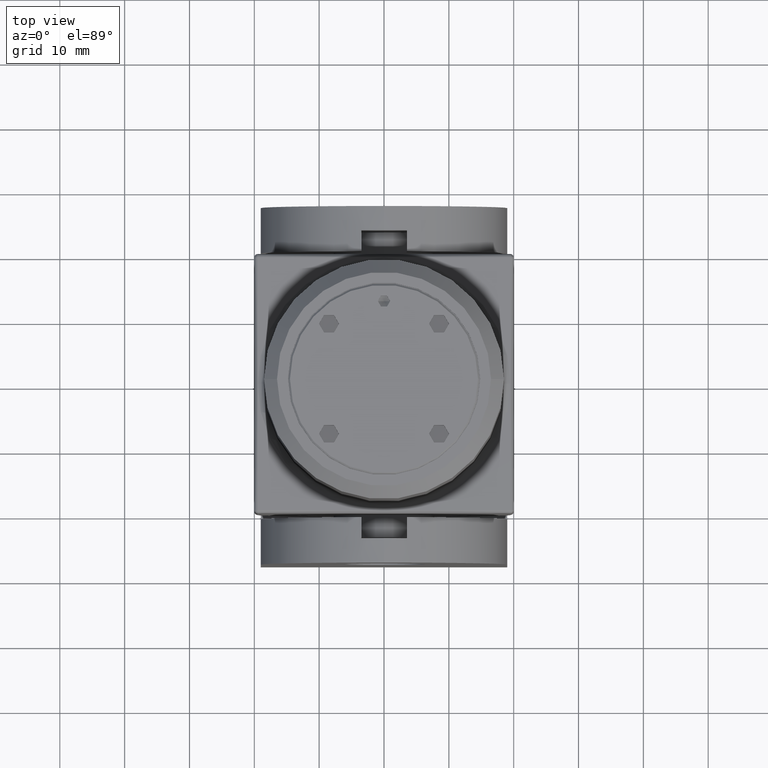
[diagram: clean part render]
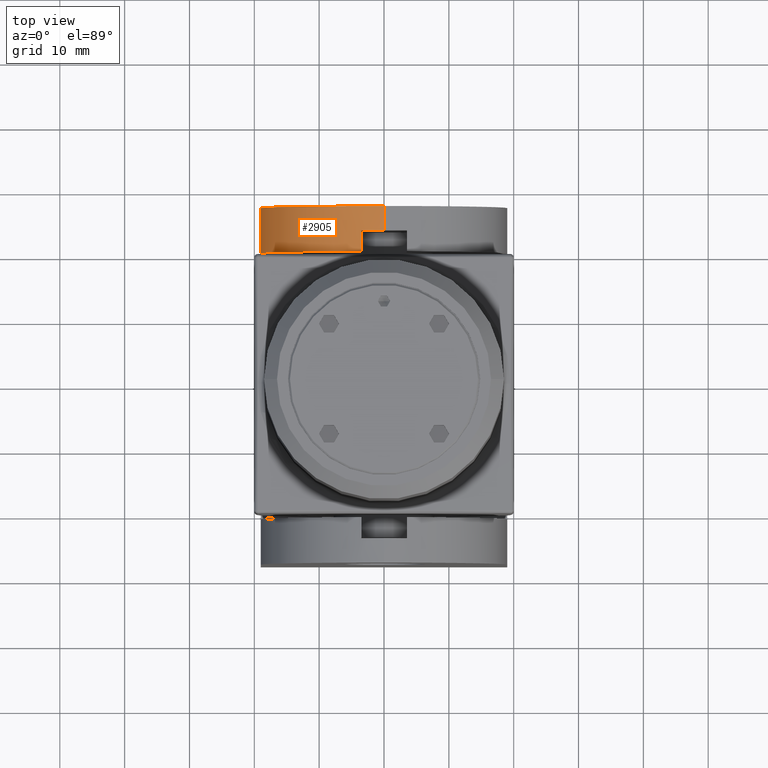
[diagram: same view with one face highlighted and labeled with its STEP entity id]
A machine part, top view. The second image highlights one B-rep face of the part: STEP entity #2905.
In plain terms, the highlighted cylindrical surface (partial cylindrical patch) has radius 19 mm, axis along (0, -1, 0).
Its self-contained STEP definition (entity closure, byte-faithful):
#159 = DIRECTION ( 'NONE',  ( -0.000000000000000000, 1.000000000000000000, -0.000000000000000000 ) ) ;
#530 = CARTESIAN_POINT ( 'NONE',  ( 0.000000000000000000, 23.75000000000000000, 23.99999999999999645 ) ) ;
#1150 = EDGE_LOOP ( 'NONE', ( #16605, #18864, #5892, #1380, #10710, #11882 ) ) ;
#1380 = ORIENTED_EDGE ( 'NONE', *, *, #3779, .F. ) ;
#1410 = DIRECTION ( 'NONE',  ( 0.000000000000000000, 0.000000000000000000, 1.000000000000000000 ) ) ;
#1714 = EDGE_CURVE ( 'NONE', #4955, #9283, #3609, .T. ) ;
#1721 = LINE ( 'NONE', #15248, #15624 ) ;
#1737 = CIRCLE ( 'NONE', #4975, 19.00000000000000000 ) ;
#2346 = DIRECTION ( 'NONE',  ( 0.000000000000000000, 0.000000000000000000, -1.000000000000000000 ) ) ;
#2749 = CARTESIAN_POINT ( 'NONE',  ( 0.000000000000000000, 20.50000000000000000, 23.99999999999999645 ) ) ;
#2781 = CARTESIAN_POINT ( 'NONE',  ( -3.500000000000000000, 23.75000000000000000, 42.67484939698309887 ) ) ;
#2905 = ADVANCED_FACE ( 'NONE', ( #7694 ), #11126, .T. ) ;
#3609 = CIRCLE ( 'NONE', #10465, 19.00000000000000000 ) ;
#3779 = EDGE_CURVE ( 'NONE', #16128, #11696, #1737, .T. ) ;
#3974 = LINE ( 'NONE', #18766, #15139 ) ;
#4265 = EDGE_CURVE ( 'NONE', #5015, #4955, #1721, .T. ) ;
#4383 = DIRECTION ( 'NONE',  ( -0.000000000000000000, 1.000000000000000000, -0.000000000000000000 ) ) ;
#4930 = DIRECTION ( 'NONE',  ( 0.000000000000000000, -1.000000000000000000, 0.000000000000000000 ) ) ;
#4955 = VERTEX_POINT ( 'NONE', #6737 ) ;
#4975 = AXIS2_PLACEMENT_3D ( 'NONE', #11657, #11603, #18889 ) ;
#5015 = VERTEX_POINT ( 'NONE', #2781 ) ;
#5121 = AXIS2_PLACEMENT_3D ( 'NONE', #530, #16509, #13639 ) ;
#5286 = CARTESIAN_POINT ( 'NONE',  ( -19.00000000000000000, 27.50000000000000000, 23.99999999999999645 ) ) ;
#5816 = AXIS2_PLACEMENT_3D ( 'NONE', #15663, #12676, #2346 ) ;
#5892 = ORIENTED_EDGE ( 'NONE', *, *, #12134, .T. ) ;
#6737 = CARTESIAN_POINT ( 'NONE',  ( -3.500000000000000000, 20.49999999999999645, 42.67484939698309887 ) ) ;
#6933 = VECTOR ( 'NONE', #4383, 1000.000000000000000 ) ;
#7651 = VERTEX_POINT ( 'NONE', #12872 ) ;
#7694 = FACE_OUTER_BOUND ( 'NONE', #1150, .T. ) ;
#9283 = VERTEX_POINT ( 'NONE', #15239 ) ;
#10064 = EDGE_CURVE ( 'NONE', #9283, #16128, #13331, .T. ) ;
#10154 = DIRECTION ( 'NONE',  ( 0.000000000000000000, -1.000000000000000000, -0.000000000000000000 ) ) ;
#10465 = AXIS2_PLACEMENT_3D ( 'NONE', #2749, #10154, #1410 ) ;
#10710 = ORIENTED_EDGE ( 'NONE', *, *, #10064, .F. ) ;
#11126 = CYLINDRICAL_SURFACE ( 'NONE', #5816, 19.00000000000000000 ) ;
#11603 = DIRECTION ( 'NONE',  ( -0.000000000000000000, 1.000000000000000000, -0.000000000000000000 ) ) ;
#11657 = CARTESIAN_POINT ( 'NONE',  ( 0.000000000000000000, 27.50000000000000000, 23.99999999999999645 ) ) ;
#11696 = VERTEX_POINT ( 'NONE', #18269 ) ;
#11882 = ORIENTED_EDGE ( 'NONE', *, *, #1714, .F. ) ;
#12134 = EDGE_CURVE ( 'NONE', #7651, #11696, #3974, .T. ) ;
#12676 = DIRECTION ( 'NONE',  ( 0.000000000000000000, -1.000000000000000000, 0.000000000000000000 ) ) ;
#12872 = CARTESIAN_POINT ( 'NONE',  ( 0.000000000000000000, 23.75000000000000000, 43.00000000000000000 ) ) ;
#13331 = LINE ( 'NONE', #18807, #6933 ) ;
#13639 = DIRECTION ( 'NONE',  ( 0.000000000000000000, 0.000000000000000000, 1.000000000000000000 ) ) ;
#14347 = EDGE_CURVE ( 'NONE', #5015, #7651, #16899, .T. ) ;
#15139 = VECTOR ( 'NONE', #159, 1000.000000000000000 ) ;
#15239 = CARTESIAN_POINT ( 'NONE',  ( -19.00000000000000000, 20.50000000000000000, 23.99999999999999645 ) ) ;
#15248 = CARTESIAN_POINT ( 'NONE',  ( -3.500000000000000000, 27.50000000000000000, 42.67484939698309887 ) ) ;
#15624 = VECTOR ( 'NONE', #4930, 1000.000000000000000 ) ;
#15663 = CARTESIAN_POINT ( 'NONE',  ( 0.000000000000000000, 27.50000000000000000, 23.99999999999999645 ) ) ;
#16128 = VERTEX_POINT ( 'NONE', #5286 ) ;
#16509 = DIRECTION ( 'NONE',  ( 0.000000000000000000, 1.000000000000000000, 0.000000000000000000 ) ) ;
#16605 = ORIENTED_EDGE ( 'NONE', *, *, #4265, .F. ) ;
#16899 = CIRCLE ( 'NONE', #5121, 19.00000000000000000 ) ;
#18269 = CARTESIAN_POINT ( 'NONE',  ( 0.000000000000000000, 27.50000000000000000, 43.00000000000000000 ) ) ;
#18766 = CARTESIAN_POINT ( 'NONE',  ( 0.000000000000000000, 27.50000000000000000, 43.00000000000000000 ) ) ;
#18807 = CARTESIAN_POINT ( 'NONE',  ( -19.00000000000000000, 0.000000000000000000, 23.99999999999999645 ) ) ;
#18864 = ORIENTED_EDGE ( 'NONE', *, *, #14347, .T. ) ;
#18889 = DIRECTION ( 'NONE',  ( 0.000000000000000000, 0.000000000000000000, -1.000000000000000000 ) ) ;